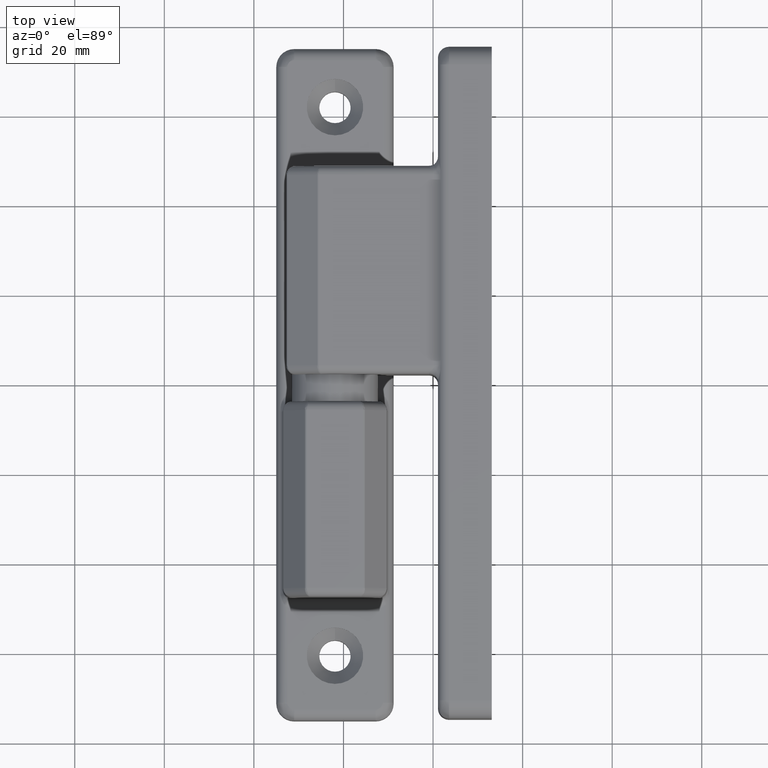
[diagram: clean part render]
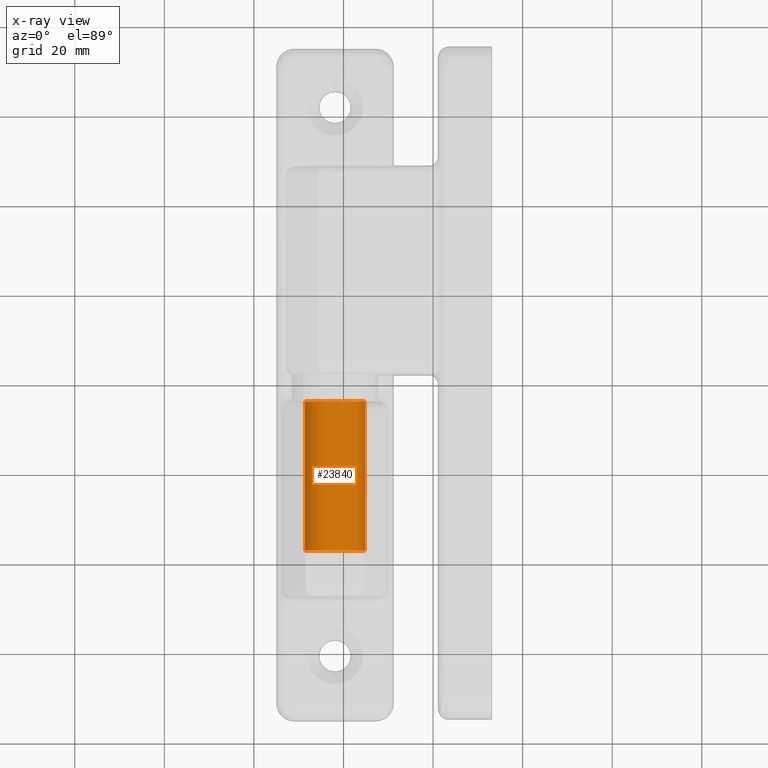
[diagram: x-ray — body ghosted, one internal face saturated and labeled with its STEP entity id]
A machine part, top view, then the same camera in x-ray: the body is ghosted and one INTERNAL B-rep face — a face not visible from any outside direction — is saturated and labeled: STEP entity #23840.
In plain terms, the highlighted cylindrical surface (bore or boss wall) has radius 6.7 mm, axis along (-0, -1, 0).
Its self-contained STEP definition (entity closure, byte-faithful):
#1331=CYLINDRICAL_SURFACE('',#26287,6.7);
#1395=FACE_BOUND('',#6854,.T.);
#3638=CIRCLE('',#26285,6.7);
#3640=CIRCLE('',#26288,6.7);
#5330=FACE_OUTER_BOUND('',#6853,.T.);
#6853=EDGE_LOOP('',(#20742));
#6854=EDGE_LOOP('',(#20743));
#10623=VERTEX_POINT('',#90396);
#10625=VERTEX_POINT('',#90401);
#13998=EDGE_CURVE('',#10623,#10623,#3638,.T.);
#14000=EDGE_CURVE('',#10625,#10625,#3640,.T.);
#20742=ORIENTED_EDGE('',*,*,#14000,.T.);
#20743=ORIENTED_EDGE('',*,*,#13998,.F.);
#23840=ADVANCED_FACE('',(#5330,#1395),#1331,.T.);
#26285=AXIS2_PLACEMENT_3D('',#90397,#32073,#32074);
#26287=AXIS2_PLACEMENT_3D('',#90400,#32077,#32078);
#26288=AXIS2_PLACEMENT_3D('',#90402,#32079,#32080);
#32073=DIRECTION('center_axis',(1.,0.,0.));
#32074=DIRECTION('ref_axis',(0.,-1.,1.83697019872103E-16));
#32077=DIRECTION('center_axis',(1.,0.,0.));
#32078=DIRECTION('ref_axis',(0.,1.,0.));
#32079=DIRECTION('center_axis',(1.,0.,0.));
#32080=DIRECTION('ref_axis',(0.,0.,-1.));
#90396=CARTESIAN_POINT('',(36.2,-6.7,-8.20513355428727E-16));
#90397=CARTESIAN_POINT('Origin',(36.2,0.,0.));
#90400=CARTESIAN_POINT('Origin',(19.75,0.,0.));
#90401=CARTESIAN_POINT('',(3.,-6.7,-8.20513355428727E-16));
#90402=CARTESIAN_POINT('Origin',(3.,0.,0.));